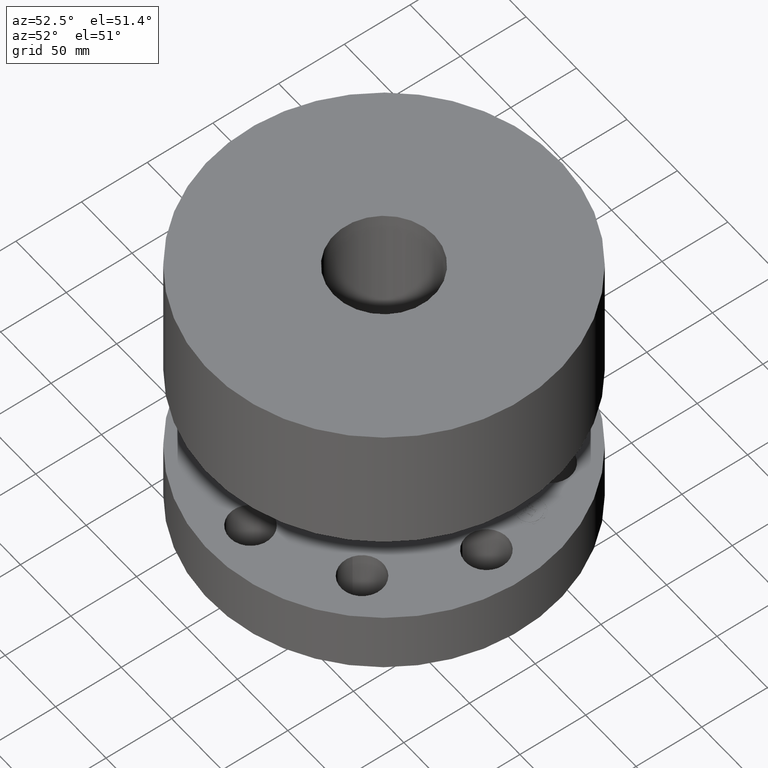
[diagram: clean part render]
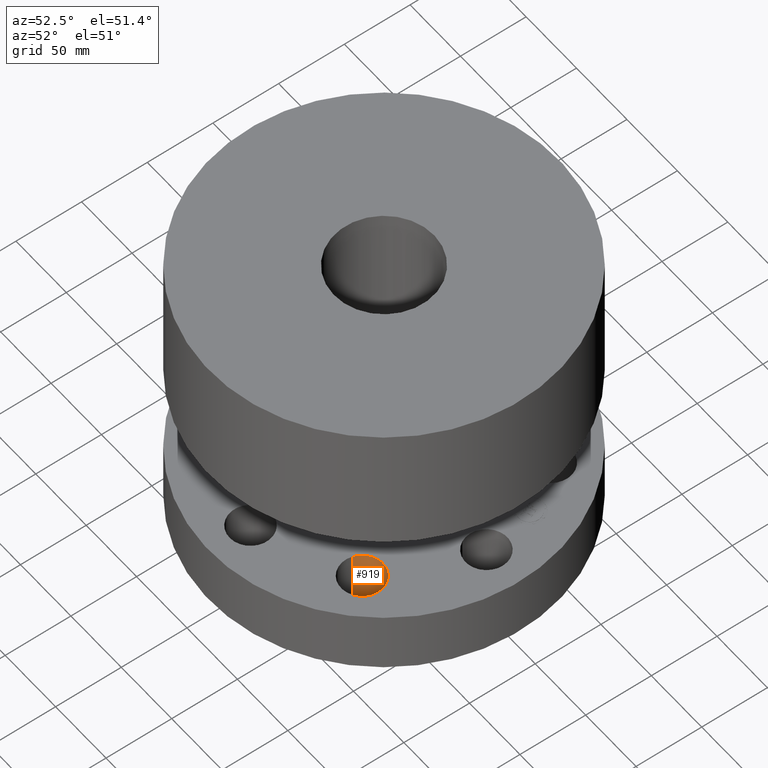
[diagram: same view with one face highlighted and labeled with its STEP entity id]
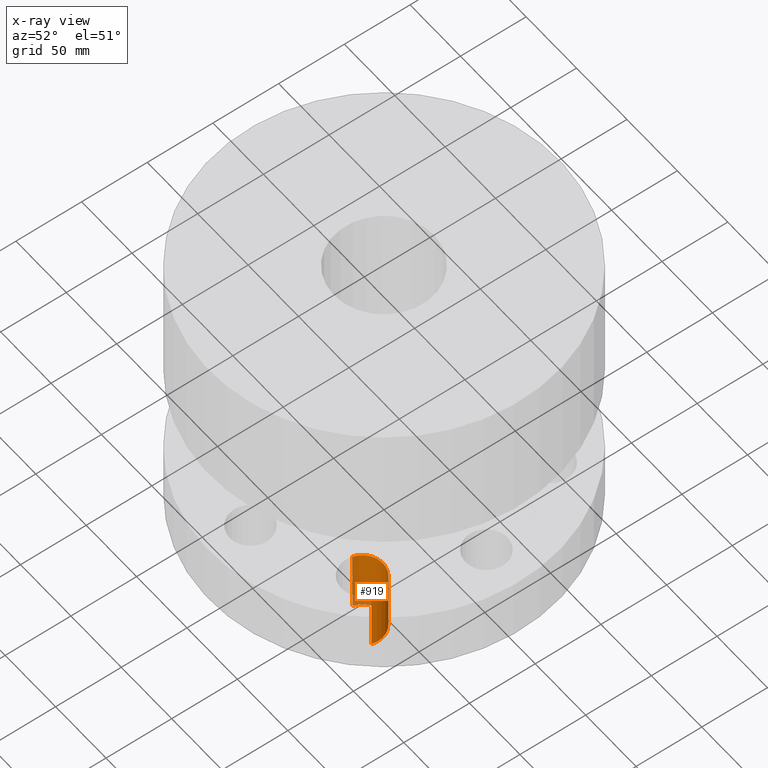
[diagram: x-ray of the same camera — body ghosted, the highlighted face saturated]
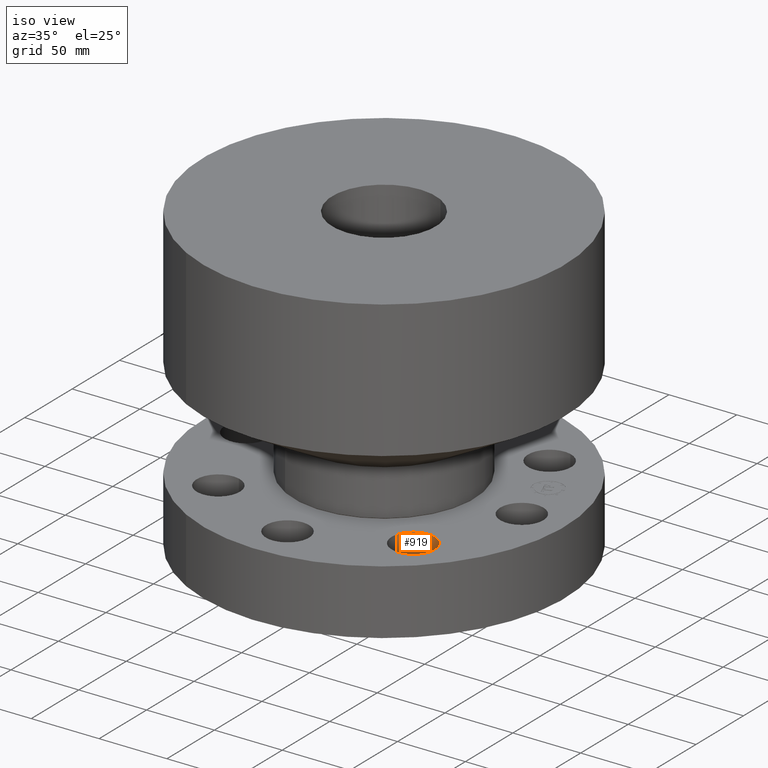
[diagram: same view with one face highlighted and labeled with its STEP entity id]
A machine part, auxiliary view. The second image highlights one B-rep face of the part: STEP entity #919.
The next image is the same camera in x-ray: the body ghosted, the highlighted face saturated — about 8% of this face is hidden behind the body in this view.
A second angle (iso view) of the same face is appended — the face is thin or edge-on in the first view.
In plain terms, the highlighted cylindrical surface (edge-blend (fillet) strip) has radius 15.875 mm, axis along (-0, 0, 1).
Its self-contained STEP definition (entity closure, byte-faithful):
#136=AXIS2_PLACEMENT_3D('Circle Axis2P3D',#134,#135,$) ;
#880=AXIS2_PLACEMENT_3D('Cylinder Axis2P3D',#877,#878,#879) ;
#910=AXIS2_PLACEMENT_3D('Circle Axis2P3D',#908,#909,$) ;
#129=CARTESIAN_POINT('Vertex',(3.4281456435,-3.00438933172,0.)) ;
#131=CARTESIAN_POINT('Vertex',(2.22870860601,-2.65246491779,0.)) ;
#134=CARTESIAN_POINT('Axis2P3D Location',(2.82842712476,-2.82842712476,0.)) ;
#877=CARTESIAN_POINT('Axis2P3D Location',(2.82842712476,-2.82842712476,0.00393700787402)) ;
#882=CARTESIAN_POINT('Line Origine',(3.4281456435,-3.00438933172,0.940000000004)) ;
#886=CARTESIAN_POINT('Vertex',(3.4281456435,-3.00438933172,1.88000000001)) ;
#889=CARTESIAN_POINT('Line Origine',(2.22870860601,-2.65246491779,0.940000000004)) ;
#893=CARTESIAN_POINT('Vertex',(2.22870860601,-2.65246491779,1.88000000001)) ;
#908=CARTESIAN_POINT('Axis2P3D Location',(2.82842712476,-2.82842712476,1.88000000001)) ;
#135=DIRECTION('Axis2P3D Direction',(0.,0.,-0.0393700787402)) ;
#878=DIRECTION('Axis2P3D Direction',(-0.,0.,0.0393700787402)) ;
#879=DIRECTION('Axis2P3D XDirection',(0.0377775444876,-0.0110842335096,0.)) ;
#883=DIRECTION('Vector Direction',(0.,0.,0.0393700787402)) ;
#890=DIRECTION('Vector Direction',(0.,0.,0.0393700787402)) ;
#909=DIRECTION('Axis2P3D Direction',(-0.,0.,0.0393700787402)) ;
#884=VECTOR('Line Direction',#883,0.0393700787402) ;
#891=VECTOR('Line Direction',#890,0.0393700787402) ;
#914=ORIENTED_EDGE('',*,*,#895,.T.) ;
#915=ORIENTED_EDGE('',*,*,#138,.T.) ;
#916=ORIENTED_EDGE('',*,*,#888,.F.) ;
#917=ORIENTED_EDGE('',*,*,#912,.F.) ;
#919=ADVANCED_FACE('PartBody',(#918),#881,.F.) ;
#137=CIRCLE('generated circle',#136,0.625000000003) ;
#911=CIRCLE('generated circle',#910,0.625000000002) ;
#881=CYLINDRICAL_SURFACE('generated cylinder',#880,0.625000000002) ;
#138=EDGE_CURVE('',#132,#130,#137,.T.) ;
#888=EDGE_CURVE('',#887,#130,#885,.F.) ;
#895=EDGE_CURVE('',#894,#132,#892,.F.) ;
#912=EDGE_CURVE('',#894,#887,#911,.F.) ;
#913=EDGE_LOOP('',(#914,#915,#916,#917)) ;
#918=FACE_OUTER_BOUND('',#913,.T.) ;
#885=LINE('Line',#882,#884) ;
#892=LINE('Line',#889,#891) ;
#130=VERTEX_POINT('',#129) ;
#132=VERTEX_POINT('',#131) ;
#887=VERTEX_POINT('',#886) ;
#894=VERTEX_POINT('',#893) ;